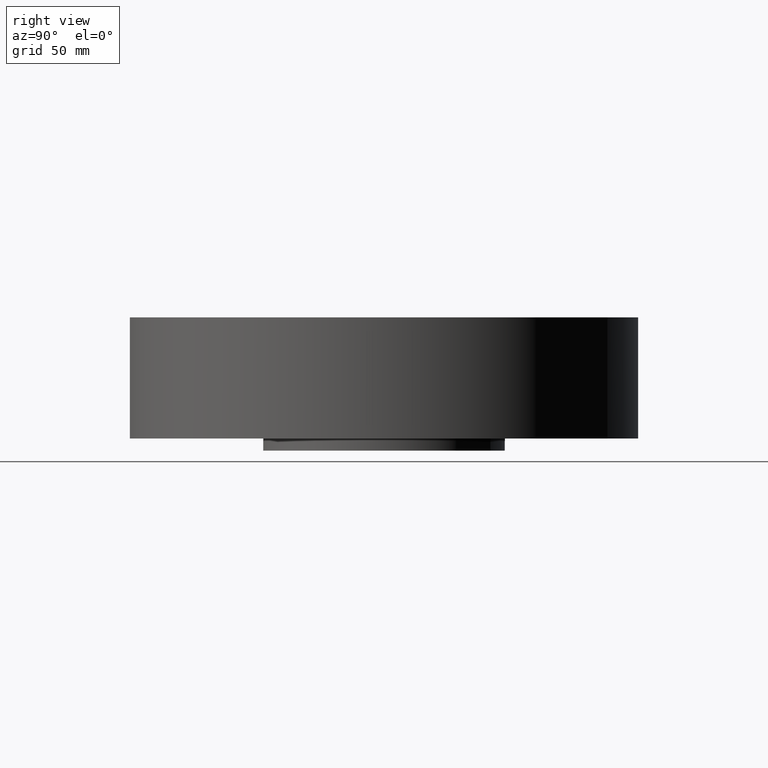
[diagram: clean part render]
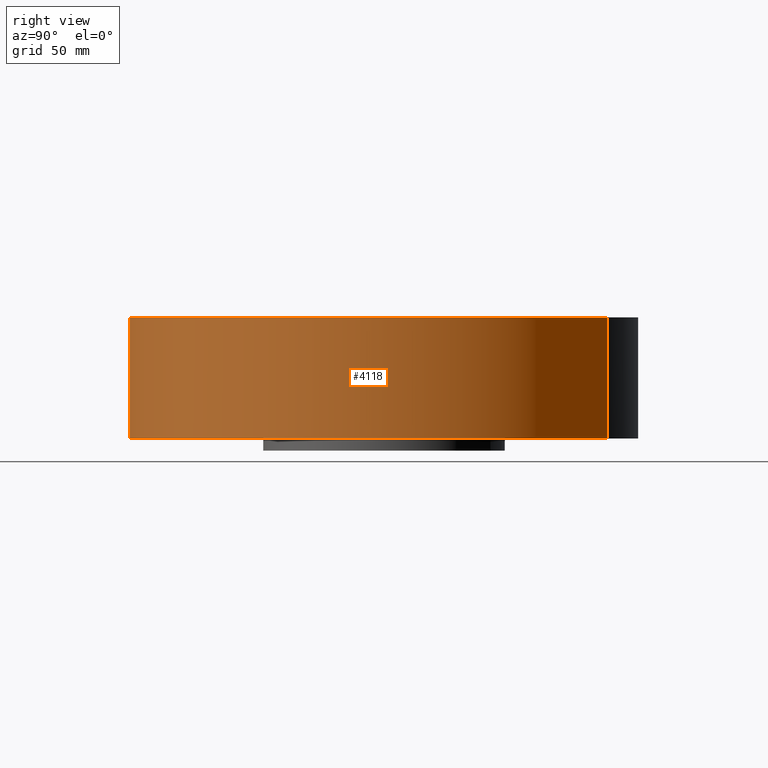
[diagram: same view with one face highlighted and labeled with its STEP entity id]
A machine part, right view. The second image highlights one B-rep face of the part: STEP entity #4118.
In plain terms, the highlighted cylindrical surface (partial cylindrical patch) has radius 133.35 mm, axis along (0, 0, -1).
Its self-contained STEP definition (entity closure, byte-faithful):
#3707=AXIS2_PLACEMENT_3D('Circle Axis2P3D',#3705,#3706,$) ;
#4079=AXIS2_PLACEMENT_3D('Cylinder Axis2P3D',#4076,#4077,#4078) ;
#4109=AXIS2_PLACEMENT_3D('Circle Axis2P3D',#4107,#4108,$) ;
#3700=CARTESIAN_POINT('Vertex',(-2.51698407768,-4.60730844994,-3.90239022199E-014)) ;
#3702=CARTESIAN_POINT('Vertex',(2.51698407768,4.60730844994,-3.90239022199E-014)) ;
#3705=CARTESIAN_POINT('Axis2P3D Location',(0.,0.,0.)) ;
#4076=CARTESIAN_POINT('Axis2P3D Location',(0.,0.,1.125)) ;
#4081=CARTESIAN_POINT('Line Origine',(-2.51698407768,-4.60730844994,1.25)) ;
#4085=CARTESIAN_POINT('Vertex',(-2.51698407768,-4.60730844994,2.50000000001)) ;
#4092=CARTESIAN_POINT('Vertex',(2.51698407768,4.60730844994,2.50000000001)) ;
#4095=CARTESIAN_POINT('Line Origine',(2.51698407768,4.60730844994,1.25)) ;
#4107=CARTESIAN_POINT('Axis2P3D Location',(0.,0.,2.50000000001)) ;
#3706=DIRECTION('Axis2P3D Direction',(0.,0.,-0.0393700787402)) ;
#4077=DIRECTION('Axis2P3D Direction',(0.,0.,-0.0393700787402)) ;
#4078=DIRECTION('Axis2P3D XDirection',(0.0188750212049,0.0345504945626,0.)) ;
#4082=DIRECTION('Vector Direction',(0.,0.,-0.0393700787402)) ;
#4096=DIRECTION('Vector Direction',(0.,0.,-0.0393700787402)) ;
#4108=DIRECTION('Axis2P3D Direction',(0.,0.,-0.0393700787402)) ;
#4083=VECTOR('Line Direction',#4082,0.0393700787402) ;
#4097=VECTOR('Line Direction',#4096,0.0393700787402) ;
#4113=ORIENTED_EDGE('',*,*,#3709,.F.) ;
#4114=ORIENTED_EDGE('',*,*,#4099,.T.) ;
#4115=ORIENTED_EDGE('',*,*,#4111,.T.) ;
#4116=ORIENTED_EDGE('',*,*,#4087,.F.) ;
#4118=ADVANCED_FACE('PartBody',(#4117),#4080,.T.) ;
#3708=CIRCLE('generated circle',#3707,5.25000000002) ;
#4110=CIRCLE('generated circle',#4109,5.25000000002) ;
#4080=CYLINDRICAL_SURFACE('generated cylinder',#4079,5.25000000002) ;
#3709=EDGE_CURVE('',#3703,#3701,#3708,.T.) ;
#4087=EDGE_CURVE('',#3701,#4086,#4084,.F.) ;
#4099=EDGE_CURVE('',#3703,#4093,#4098,.F.) ;
#4111=EDGE_CURVE('',#4093,#4086,#4110,.T.) ;
#4112=EDGE_LOOP('',(#4113,#4114,#4115,#4116)) ;
#4117=FACE_OUTER_BOUND('',#4112,.T.) ;
#4084=LINE('Line',#4081,#4083) ;
#4098=LINE('Line',#4095,#4097) ;
#3701=VERTEX_POINT('',#3700) ;
#3703=VERTEX_POINT('',#3702) ;
#4086=VERTEX_POINT('',#4085) ;
#4093=VERTEX_POINT('',#4092) ;